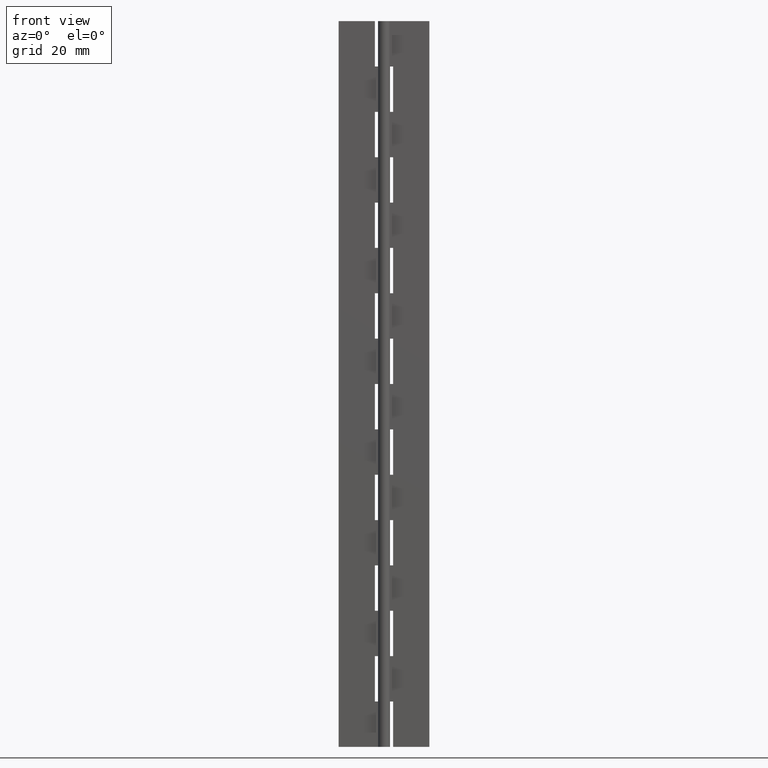
[diagram: clean part render]
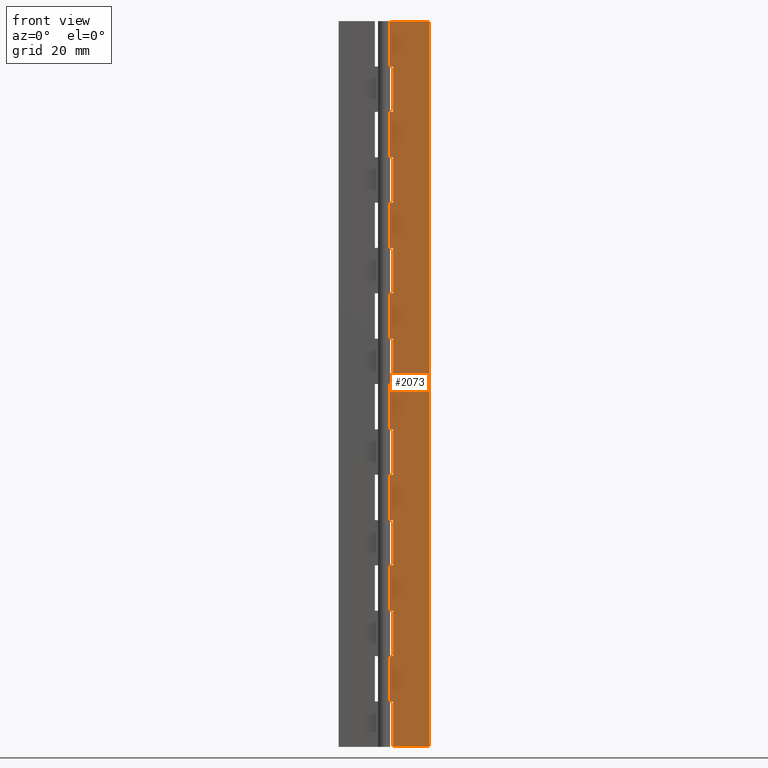
[diagram: same view with one face highlighted and labeled with its STEP entity id]
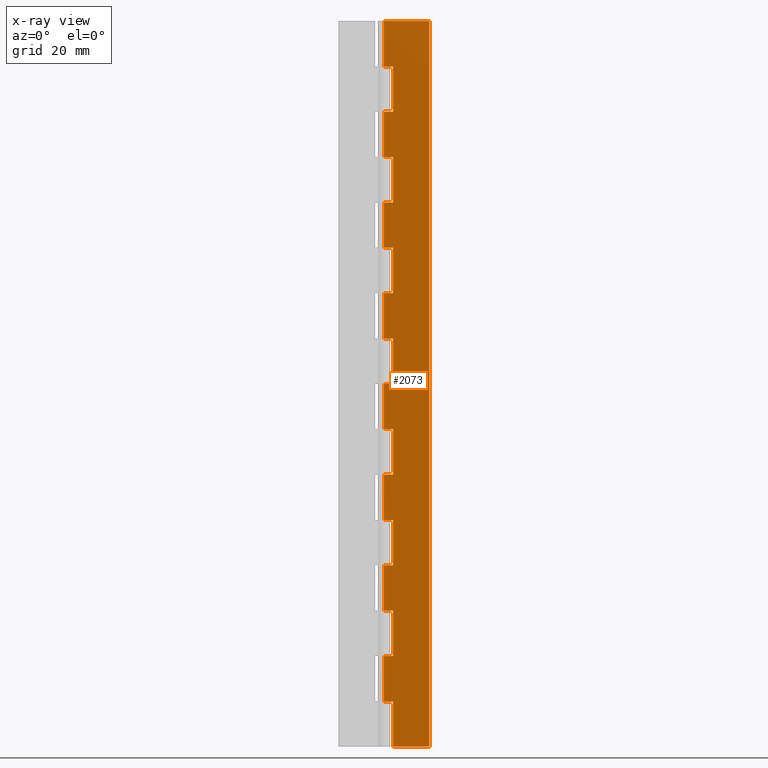
[diagram: x-ray of the same camera — body ghosted, the highlighted face saturated]
A machine part, front view. The second image highlights one B-rep face of the part: STEP entity #2073.
The next image is the same camera in x-ray: the body ghosted, the highlighted face saturated — about 0% of this face is hidden behind the body in this view.
In plain terms, the highlighted face is a freeform B-spline surface patch.
Its self-contained STEP definition (entity closure, byte-faithful):
#79=CARTESIAN_POINT('',(1.500000000000000,0.500000000000000,112.500000000000000));
#80=VERTEX_POINT('',#79);
#86=CARTESIAN_POINT('',(-6.123032E-017,0.500000000000000,112.500000000000000));
#87=VERTEX_POINT('',#86);
#88=CARTESIAN_POINT('',(1.500000000000000,0.500000000000000,112.500000000000000));
#89=CARTESIAN_POINT('',(-6.123032E-017,0.500000000000000,112.500000000000000));
#90=QUASI_UNIFORM_CURVE('',1,(#88,#89),.UNSPECIFIED.,.F.,.U.);
#91=EDGE_CURVE('',#80,#87,#90,.T.);
#127=CARTESIAN_POINT('',(1.500000000000000,0.499999999999945,105.0));
#128=VERTEX_POINT('',#127);
#129=CARTESIAN_POINT('',(1.500000000000000,0.499999999999945,105.0));
#130=CARTESIAN_POINT('',(1.500000000000000,0.500000000000000,112.500000000000000));
#131=QUASI_UNIFORM_CURVE('',1,(#129,#130),.UNSPECIFIED.,.F.,.U.);
#132=EDGE_CURVE('',#128,#80,#131,.T.);
#185=CARTESIAN_POINT('',(-6.123032E-017,0.500000000000000,105.0));
#186=VERTEX_POINT('',#185);
#206=CARTESIAN_POINT('',(-6.123032E-017,0.500000000000000,105.0));
#207=CARTESIAN_POINT('',(1.500000000000000,0.499999999999945,105.0));
#208=QUASI_UNIFORM_CURVE('',1,(#206,#207),.UNSPECIFIED.,.F.,.U.);
#209=EDGE_CURVE('',#186,#128,#208,.T.);
#255=CARTESIAN_POINT('',(1.500000000000000,0.500000000000000,97.500000000000000));
#256=VERTEX_POINT('',#255);
#262=CARTESIAN_POINT('',(-6.123032E-017,0.500000000000000,97.500000000000000));
#263=VERTEX_POINT('',#262);
#264=CARTESIAN_POINT('',(1.500000000000000,0.500000000000000,97.500000000000000));
#265=CARTESIAN_POINT('',(-6.123032E-017,0.500000000000000,97.500000000000000));
#266=QUASI_UNIFORM_CURVE('',1,(#264,#265),.UNSPECIFIED.,.F.,.U.);
#267=EDGE_CURVE('',#256,#263,#266,.T.);
#303=CARTESIAN_POINT('',(1.500000000000000,0.499999999999945,90.0));
#304=VERTEX_POINT('',#303);
#305=CARTESIAN_POINT('',(1.500000000000000,0.499999999999945,90.0));
#306=CARTESIAN_POINT('',(1.500000000000000,0.500000000000000,97.500000000000000));
#307=QUASI_UNIFORM_CURVE('',1,(#305,#306),.UNSPECIFIED.,.F.,.U.);
#308=EDGE_CURVE('',#304,#256,#307,.T.);
#361=CARTESIAN_POINT('',(-6.123032E-017,0.500000000000000,90.0));
#362=VERTEX_POINT('',#361);
#382=CARTESIAN_POINT('',(-6.123032E-017,0.500000000000000,90.0));
#383=CARTESIAN_POINT('',(1.500000000000000,0.499999999999945,90.0));
#384=QUASI_UNIFORM_CURVE('',1,(#382,#383),.UNSPECIFIED.,.F.,.U.);
#385=EDGE_CURVE('',#362,#304,#384,.T.);
#431=CARTESIAN_POINT('',(1.500000000000000,0.500000000000000,82.500000000000000));
#432=VERTEX_POINT('',#431);
#438=CARTESIAN_POINT('',(-6.123032E-017,0.500000000000000,82.500000000000000));
#439=VERTEX_POINT('',#438);
#440=CARTESIAN_POINT('',(1.500000000000000,0.500000000000000,82.500000000000000));
#441=CARTESIAN_POINT('',(-6.123032E-017,0.500000000000000,82.500000000000000));
#442=QUASI_UNIFORM_CURVE('',1,(#440,#441),.UNSPECIFIED.,.F.,.U.);
#443=EDGE_CURVE('',#432,#439,#442,.T.);
#479=CARTESIAN_POINT('',(1.500000000000000,0.499999999999945,75.0));
#480=VERTEX_POINT('',#479);
#481=CARTESIAN_POINT('',(1.500000000000000,0.499999999999945,75.0));
#482=CARTESIAN_POINT('',(1.500000000000000,0.500000000000000,82.500000000000000));
#483=QUASI_UNIFORM_CURVE('',1,(#481,#482),.UNSPECIFIED.,.F.,.U.);
#484=EDGE_CURVE('',#480,#432,#483,.T.);
#537=CARTESIAN_POINT('',(-6.123032E-017,0.500000000000000,75.0));
#538=VERTEX_POINT('',#537);
#558=CARTESIAN_POINT('',(-6.123032E-017,0.500000000000000,75.0));
#559=CARTESIAN_POINT('',(1.500000000000000,0.499999999999945,75.0));
#560=QUASI_UNIFORM_CURVE('',1,(#558,#559),.UNSPECIFIED.,.F.,.U.);
#561=EDGE_CURVE('',#538,#480,#560,.T.);
#607=CARTESIAN_POINT('',(1.500000000000000,0.500000000000000,67.500000000000000));
#608=VERTEX_POINT('',#607);
#614=CARTESIAN_POINT('',(-6.123032E-017,0.500000000000000,67.500000000000000));
#615=VERTEX_POINT('',#614);
#616=CARTESIAN_POINT('',(1.500000000000000,0.500000000000000,67.500000000000000));
#617=CARTESIAN_POINT('',(-6.123032E-017,0.500000000000000,67.500000000000000));
#618=QUASI_UNIFORM_CURVE('',1,(#616,#617),.UNSPECIFIED.,.F.,.U.);
#619=EDGE_CURVE('',#608,#615,#618,.T.);
#655=CARTESIAN_POINT('',(1.500000000000000,0.499999999999945,60.0));
#656=VERTEX_POINT('',#655);
#657=CARTESIAN_POINT('',(1.500000000000000,0.499999999999945,60.0));
#658=CARTESIAN_POINT('',(1.500000000000000,0.500000000000000,67.500000000000000));
#659=QUASI_UNIFORM_CURVE('',1,(#657,#658),.UNSPECIFIED.,.F.,.U.);
#660=EDGE_CURVE('',#656,#608,#659,.T.);
#713=CARTESIAN_POINT('',(-6.123032E-017,0.500000000000000,60.0));
#714=VERTEX_POINT('',#713);
#734=CARTESIAN_POINT('',(-6.123032E-017,0.500000000000000,60.0));
#735=CARTESIAN_POINT('',(1.500000000000000,0.499999999999945,60.0));
#736=QUASI_UNIFORM_CURVE('',1,(#734,#735),.UNSPECIFIED.,.F.,.U.);
#737=EDGE_CURVE('',#714,#656,#736,.T.);
#783=CARTESIAN_POINT('',(1.500000000000000,0.500000000000000,52.500000000000000));
#784=VERTEX_POINT('',#783);
#790=CARTESIAN_POINT('',(-6.123032E-017,0.500000000000000,52.500000000000000));
#791=VERTEX_POINT('',#790);
#792=CARTESIAN_POINT('',(1.500000000000000,0.500000000000000,52.500000000000000));
#793=CARTESIAN_POINT('',(-6.123032E-017,0.500000000000000,52.500000000000000));
#794=QUASI_UNIFORM_CURVE('',1,(#792,#793),.UNSPECIFIED.,.F.,.U.);
#795=EDGE_CURVE('',#784,#791,#794,.T.);
#831=CARTESIAN_POINT('',(1.500000000000000,0.499999999999945,45.0));
#832=VERTEX_POINT('',#831);
#833=CARTESIAN_POINT('',(1.500000000000000,0.499999999999945,45.0));
#834=CARTESIAN_POINT('',(1.500000000000000,0.500000000000000,52.500000000000000));
#835=QUASI_UNIFORM_CURVE('',1,(#833,#834),.UNSPECIFIED.,.F.,.U.);
#836=EDGE_CURVE('',#832,#784,#835,.T.);
#889=CARTESIAN_POINT('',(-6.123032E-017,0.500000000000000,45.0));
#890=VERTEX_POINT('',#889);
#910=CARTESIAN_POINT('',(-6.123032E-017,0.500000000000000,45.0));
#911=CARTESIAN_POINT('',(1.500000000000000,0.499999999999945,45.0));
#912=QUASI_UNIFORM_CURVE('',1,(#910,#911),.UNSPECIFIED.,.F.,.U.);
#913=EDGE_CURVE('',#890,#832,#912,.T.);
#959=CARTESIAN_POINT('',(1.500000000000000,0.500000000000000,37.500000000000000));
#960=VERTEX_POINT('',#959);
#966=CARTESIAN_POINT('',(-6.123032E-017,0.500000000000000,37.500000000000000));
#967=VERTEX_POINT('',#966);
#968=CARTESIAN_POINT('',(1.500000000000000,0.500000000000000,37.500000000000000));
#969=CARTESIAN_POINT('',(-6.123032E-017,0.500000000000000,37.500000000000000));
#970=QUASI_UNIFORM_CURVE('',1,(#968,#969),.UNSPECIFIED.,.F.,.U.);
#971=EDGE_CURVE('',#960,#967,#970,.T.);
#1007=CARTESIAN_POINT('',(1.500000000000000,0.499999999999945,30.0));
#1008=VERTEX_POINT('',#1007);
#1009=CARTESIAN_POINT('',(1.500000000000000,0.499999999999945,30.0));
#1010=CARTESIAN_POINT('',(1.500000000000000,0.500000000000000,37.500000000000000));
#1011=QUASI_UNIFORM_CURVE('',1,(#1009,#1010),.UNSPECIFIED.,.F.,.U.);
#1012=EDGE_CURVE('',#1008,#960,#1011,.T.);
#1065=CARTESIAN_POINT('',(-6.123032E-017,0.500000000000000,30.0));
#1066=VERTEX_POINT('',#1065);
#1086=CARTESIAN_POINT('',(-6.123032E-017,0.500000000000000,30.0));
#1087=CARTESIAN_POINT('',(1.500000000000000,0.499999999999945,30.0));
#1088=QUASI_UNIFORM_CURVE('',1,(#1086,#1087),.UNSPECIFIED.,.F.,.U.);
#1089=EDGE_CURVE('',#1066,#1008,#1088,.T.);
#1135=CARTESIAN_POINT('',(1.500000000000000,0.500000000000000,22.500000000000000));
#1136=VERTEX_POINT('',#1135);
#1142=CARTESIAN_POINT('',(-6.123032E-017,0.500000000000000,22.500000000000000));
#1143=VERTEX_POINT('',#1142);
#1144=CARTESIAN_POINT('',(1.500000000000000,0.500000000000000,22.500000000000000));
#1145=CARTESIAN_POINT('',(-6.123032E-017,0.500000000000000,22.500000000000000));
#1146=QUASI_UNIFORM_CURVE('',1,(#1144,#1145),.UNSPECIFIED.,.F.,.U.);
#1147=EDGE_CURVE('',#1136,#1143,#1146,.T.);
#1183=CARTESIAN_POINT('',(1.500000000000000,0.499999999999945,15.0));
#1184=VERTEX_POINT('',#1183);
#1185=CARTESIAN_POINT('',(1.500000000000000,0.499999999999945,15.0));
#1186=CARTESIAN_POINT('',(1.500000000000000,0.500000000000000,22.500000000000000));
#1187=QUASI_UNIFORM_CURVE('',1,(#1185,#1186),.UNSPECIFIED.,.F.,.U.);
#1188=EDGE_CURVE('',#1184,#1136,#1187,.T.);
#1241=CARTESIAN_POINT('',(-6.123032E-017,0.500000000000000,15.0));
#1242=VERTEX_POINT('',#1241);
#1262=CARTESIAN_POINT('',(-6.123032E-017,0.500000000000000,15.0));
#1263=CARTESIAN_POINT('',(1.500000000000000,0.499999999999945,15.0));
#1264=QUASI_UNIFORM_CURVE('',1,(#1262,#1263),.UNSPECIFIED.,.F.,.U.);
#1265=EDGE_CURVE('',#1242,#1184,#1264,.T.);
#1281=CARTESIAN_POINT('',(1.500000000000000,0.499999999999945,0.0));
#1282=VERTEX_POINT('',#1281);
#1283=CARTESIAN_POINT('',(1.500000000000000,0.499999999999945,7.500000000000000));
#1284=VERTEX_POINT('',#1283);
#1285=CARTESIAN_POINT('',(1.500000000000000,0.499999999999945,0.0));
#1286=CARTESIAN_POINT('',(1.500000000000000,0.499999999999945,7.500000000000000));
#1287=QUASI_UNIFORM_CURVE('',1,(#1285,#1286),.UNSPECIFIED.,.F.,.U.);
#1288=EDGE_CURVE('',#1282,#1284,#1287,.T.);
#1346=CARTESIAN_POINT('',(-6.123032E-017,0.500000000000000,7.500000000000000));
#1347=VERTEX_POINT('',#1346);
#1348=CARTESIAN_POINT('',(1.500000000000000,0.499999999999945,7.500000000000000));
#1349=CARTESIAN_POINT('',(-6.123032E-017,0.500000000000000,7.500000000000000));
#1350=QUASI_UNIFORM_CURVE('',1,(#1348,#1349),.UNSPECIFIED.,.F.,.U.);
#1351=EDGE_CURVE('',#1284,#1347,#1350,.T.);
#1387=CARTESIAN_POINT('',(-6.123032E-017,0.500000000000000,120.0));
#1388=VERTEX_POINT('',#1387);
#1410=CARTESIAN_POINT('',(7.500000000000000,0.500000000000000,120.0));
#1411=VERTEX_POINT('',#1410);
#1412=CARTESIAN_POINT('',(-6.123032E-017,0.500000000000000,120.0));
#1413=CARTESIAN_POINT('',(7.500000000000000,0.500000000000000,120.0));
#1414=QUASI_UNIFORM_CURVE('',1,(#1412,#1413),.UNSPECIFIED.,.F.,.U.);
#1415=EDGE_CURVE('',#1388,#1411,#1414,.T.);
#1465=CARTESIAN_POINT('',(7.500000000000000,0.500000000000000,0.0));
#1466=VERTEX_POINT('',#1465);
#1480=CARTESIAN_POINT('',(7.500000000000000,0.500000000000000,120.0));
#1481=CARTESIAN_POINT('',(7.500000000000000,0.500000000000000,0.0));
#1482=QUASI_UNIFORM_CURVE('',1,(#1480,#1481),.UNSPECIFIED.,.F.,.U.);
#1483=EDGE_CURVE('',#1411,#1466,#1482,.T.);
#1500=CARTESIAN_POINT('',(1.500000000000000,0.499999999999945,0.0));
#1501=CARTESIAN_POINT('',(7.500000000000000,0.500000000000000,0.0));
#1502=QUASI_UNIFORM_CURVE('',1,(#1500,#1501),.UNSPECIFIED.,.F.,.U.);
#1503=EDGE_CURVE('',#1282,#1466,#1502,.T.);
#1583=CARTESIAN_POINT('',(-6.123032E-017,0.500000000000000,15.0));
#1584=CARTESIAN_POINT('',(-6.123032E-017,0.500000000000000,7.500000000000000));
#1585=QUASI_UNIFORM_CURVE('',1,(#1583,#1584),.UNSPECIFIED.,.F.,.U.);
#1586=EDGE_CURVE('',#1242,#1347,#1585,.T.);
#1669=CARTESIAN_POINT('',(-6.123032E-017,0.500000000000000,30.0));
#1670=CARTESIAN_POINT('',(-6.123032E-017,0.500000000000000,22.500000000000000));
#1671=QUASI_UNIFORM_CURVE('',1,(#1669,#1670),.UNSPECIFIED.,.F.,.U.);
#1672=EDGE_CURVE('',#1066,#1143,#1671,.T.);
#1755=CARTESIAN_POINT('',(-6.123032E-017,0.500000000000000,45.0));
#1756=CARTESIAN_POINT('',(-6.123032E-017,0.500000000000000,37.500000000000000));
#1757=QUASI_UNIFORM_CURVE('',1,(#1755,#1756),.UNSPECIFIED.,.F.,.U.);
#1758=EDGE_CURVE('',#890,#967,#1757,.T.);
#1841=CARTESIAN_POINT('',(-6.123032E-017,0.500000000000000,60.0));
#1842=CARTESIAN_POINT('',(-6.123032E-017,0.500000000000000,52.500000000000000));
#1843=QUASI_UNIFORM_CURVE('',1,(#1841,#1842),.UNSPECIFIED.,.F.,.U.);
#1844=EDGE_CURVE('',#714,#791,#1843,.T.);
#1927=CARTESIAN_POINT('',(-6.123032E-017,0.500000000000000,75.0));
#1928=CARTESIAN_POINT('',(-6.123032E-017,0.500000000000000,67.500000000000000));
#1929=QUASI_UNIFORM_CURVE('',1,(#1927,#1928),.UNSPECIFIED.,.F.,.U.);
#1930=EDGE_CURVE('',#538,#615,#1929,.T.);
#2013=CARTESIAN_POINT('',(-6.123032E-017,0.500000000000000,90.0));
#2014=CARTESIAN_POINT('',(-6.123032E-017,0.500000000000000,82.500000000000000));
#2015=QUASI_UNIFORM_CURVE('',1,(#2013,#2014),.UNSPECIFIED.,.F.,.U.);
#2016=EDGE_CURVE('',#362,#439,#2015,.T.);
#2024=CARTESIAN_POINT('',(-0.374624985463545,0.500000000000000,-5.993999767416717));
#2025=CARTESIAN_POINT('',(-0.374624985463545,0.500000000000000,125.994002986067500));
#2026=CARTESIAN_POINT('',(7.874625186629221,0.500000000000000,-5.993999767416717));
#2027=CARTESIAN_POINT('',(7.874625186629221,0.500000000000000,125.994002986067500));
#2028=B_SPLINE_SURFACE_WITH_KNOTS('',1,1,((#2024,#2026),(#2025,#2027)),.UNSPECIFIED.,.F.,.F.,.U.,(2,2),(2,2),(0.0,131.988002753484300),(0.0,8.249250172092767),.UNSPECIFIED.);
#2029=ORIENTED_EDGE('',*,*,#209,.F.);
#2030=CARTESIAN_POINT('',(-6.123032E-017,0.500000000000000,105.0));
#2031=CARTESIAN_POINT('',(-6.123032E-017,0.500000000000000,97.500000000000000));
#2032=QUASI_UNIFORM_CURVE('',1,(#2030,#2031),.UNSPECIFIED.,.F.,.U.);
#2033=EDGE_CURVE('',#186,#263,#2032,.T.);
#2034=ORIENTED_EDGE('',*,*,#2033,.T.);
#2035=ORIENTED_EDGE('',*,*,#267,.F.);
#2036=ORIENTED_EDGE('',*,*,#308,.F.);
#2037=ORIENTED_EDGE('',*,*,#385,.F.);
#2038=ORIENTED_EDGE('',*,*,#2016,.T.);
#2039=ORIENTED_EDGE('',*,*,#443,.F.);
#2040=ORIENTED_EDGE('',*,*,#484,.F.);
#2041=ORIENTED_EDGE('',*,*,#561,.F.);
#2042=ORIENTED_EDGE('',*,*,#1930,.T.);
#2043=ORIENTED_EDGE('',*,*,#619,.F.);
#2044=ORIENTED_EDGE('',*,*,#660,.F.);
#2045=ORIENTED_EDGE('',*,*,#737,.F.);
#2046=ORIENTED_EDGE('',*,*,#1844,.T.);
#2047=ORIENTED_EDGE('',*,*,#795,.F.);
#2048=ORIENTED_EDGE('',*,*,#836,.F.);
#2049=ORIENTED_EDGE('',*,*,#913,.F.);
#2050=ORIENTED_EDGE('',*,*,#1758,.T.);
#2051=ORIENTED_EDGE('',*,*,#971,.F.);
#2052=ORIENTED_EDGE('',*,*,#1012,.F.);
#2053=ORIENTED_EDGE('',*,*,#1089,.F.);
#2054=ORIENTED_EDGE('',*,*,#1672,.T.);
#2055=ORIENTED_EDGE('',*,*,#1147,.F.);
#2056=ORIENTED_EDGE('',*,*,#1188,.F.);
#2057=ORIENTED_EDGE('',*,*,#1265,.F.);
#2058=ORIENTED_EDGE('',*,*,#1586,.T.);
#2059=ORIENTED_EDGE('',*,*,#1351,.F.);
#2060=ORIENTED_EDGE('',*,*,#1288,.F.);
#2061=ORIENTED_EDGE('',*,*,#1503,.T.);
#2062=ORIENTED_EDGE('',*,*,#1483,.F.);
#2063=ORIENTED_EDGE('',*,*,#1415,.F.);
#2064=CARTESIAN_POINT('',(-6.123032E-017,0.500000000000000,120.0));
#2065=CARTESIAN_POINT('',(-6.123032E-017,0.500000000000000,112.500000000000000));
#2066=QUASI_UNIFORM_CURVE('',1,(#2064,#2065),.UNSPECIFIED.,.F.,.U.);
#2067=EDGE_CURVE('',#1388,#87,#2066,.T.);
#2068=ORIENTED_EDGE('',*,*,#2067,.T.);
#2069=ORIENTED_EDGE('',*,*,#91,.F.);
#2070=ORIENTED_EDGE('',*,*,#132,.F.);
#2071=EDGE_LOOP('',(#2029,#2034,#2035,#2036,#2037,#2038,#2039,#2040,#2041,#2042,#2043,#2044,#2045,#2046,#2047,#2048,#2049,#2050,#2051,#2052,#2053,#2054,#2055,#2056,#2057,#2058,#2059,#2060,#2061,#2062,#2063,#2068,#2069,#2070));
#2072=FACE_OUTER_BOUND('',#2071,.T.);
#2073=ADVANCED_FACE('',(#2072),#2028,.F.);